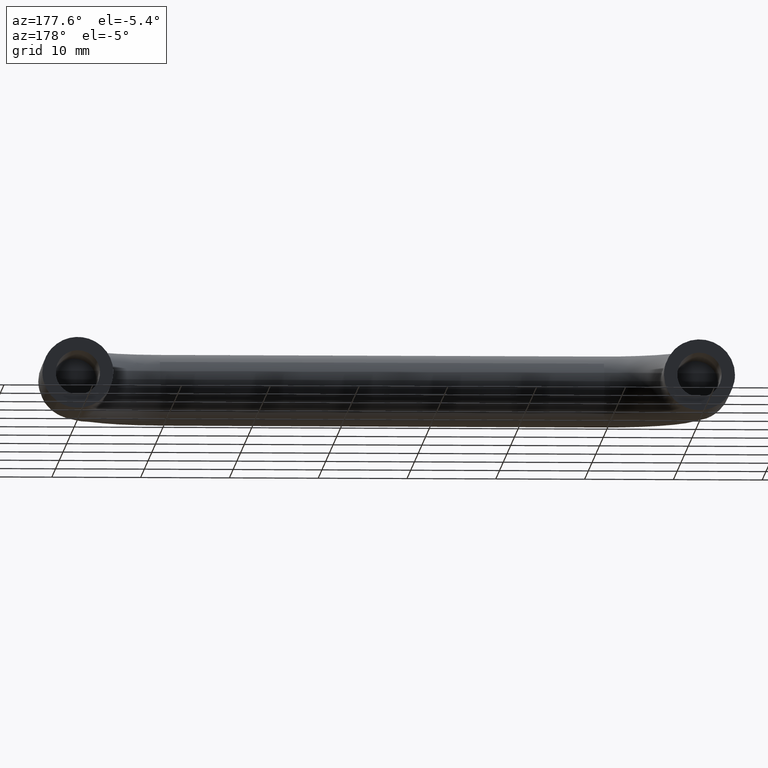
[diagram: clean part render]
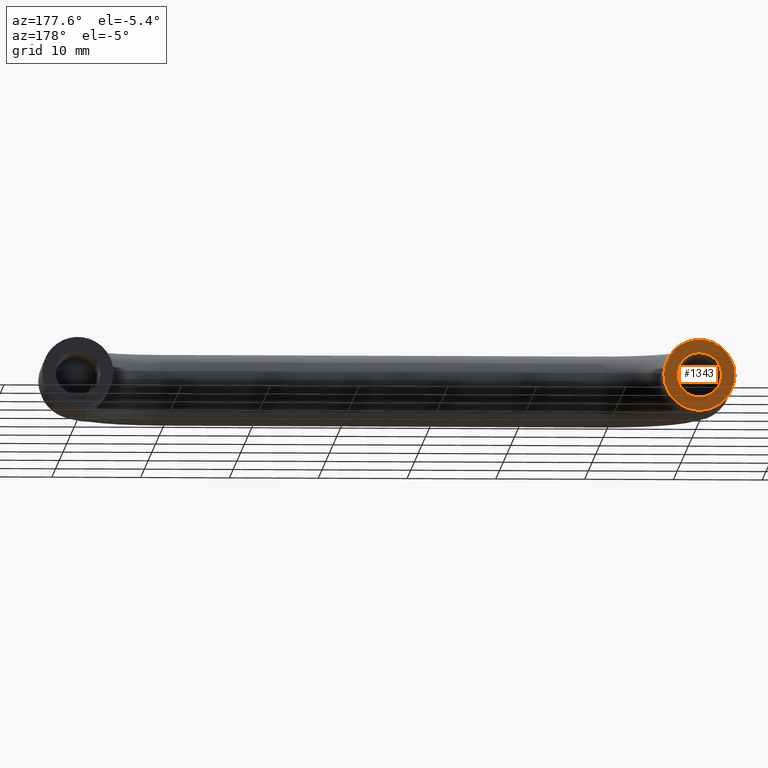
[diagram: same view with one face highlighted and labeled with its STEP entity id]
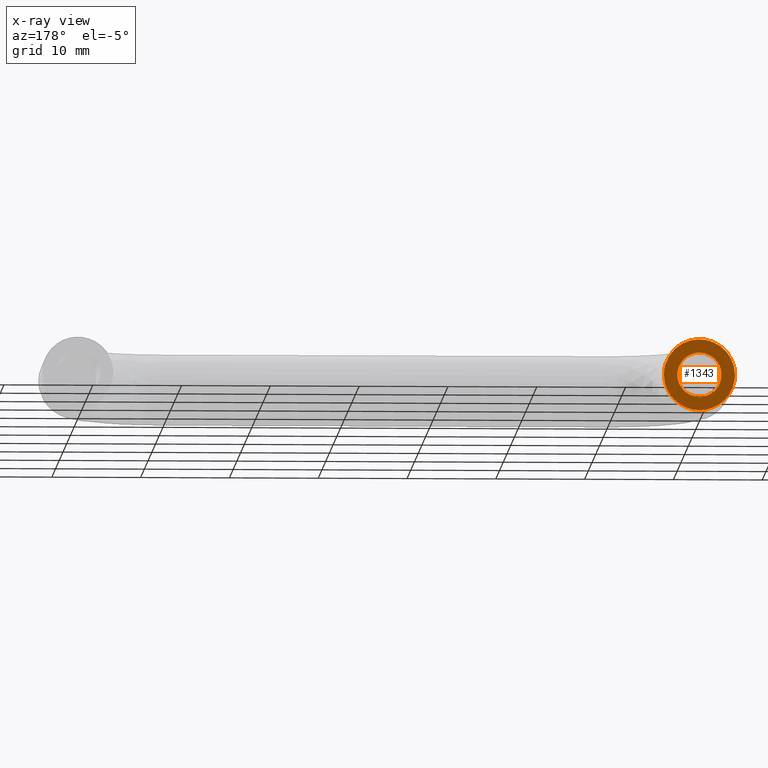
[diagram: x-ray of the same camera — body ghosted, the highlighted face saturated]
A machine part, auxiliary view. The second image highlights one B-rep face of the part: STEP entity #1343.
The next image is the same camera in x-ray: the body ghosted, the highlighted face saturated — about 0% of this face is hidden behind the body in this view.
In plain terms, the highlighted face is a freeform B-spline surface patch.
Its self-contained STEP definition (entity closure, byte-faithful):
#79=CARTESIAN_POINT('',(-2.492293334330208,-2.775558E-017,0.196147739352795));
#80=VERTEX_POINT('',#79);
#86=CARTESIAN_POINT('',(0.0,0.0,2.500000000000000));
#87=VERTEX_POINT('',#86);
#88=CARTESIAN_POINT('',(0.0,0.0,2.500000000000000));
#89=CARTESIAN_POINT('',(-2.310976229083793,0.0,2.500000000000000));
#90=CARTESIAN_POINT('',(-2.492293334330208,-2.775558E-017,0.196147739352795));
#98=(BOUNDED_CURVE()B_SPLINE_CURVE(2,(#88,#89,#90),.UNSPECIFIED.,.F.,.U.)B_SPLINE_CURVE_WITH_KNOTS((3,3),(0.0,0.236331300628202),.UNSPECIFIED.)CURVE()GEOMETRIC_REPRESENTATION_ITEM()RATIONAL_B_SPLINE_CURVE((1.0,0.723120658610544,0.969723356162290))REPRESENTATION_ITEM(''));
#99=EDGE_CURVE('',#87,#80,#98,.T.);
#101=CARTESIAN_POINT('',(2.492293334330208,-2.775558E-017,-0.196147739352795));
#102=VERTEX_POINT('',#101);
#103=CARTESIAN_POINT('',(2.492293334330209,-2.775558E-017,-0.196147739352795));
#104=CARTESIAN_POINT('',(2.500000000000000,0.0,-0.098225267552510));
#105=CARTESIAN_POINT('',(2.500000000000000,0.0,0.0));
#106=CARTESIAN_POINT('',(2.500000000000000,0.0,2.500000000000000));
#107=CARTESIAN_POINT('',(0.0,0.0,2.500000000000000));
#115=(BOUNDED_CURVE()B_SPLINE_CURVE(2,(#103,#104,#105,#106,#107),.UNSPECIFIED.,.F.,.U.)B_SPLINE_CURVE_WITH_KNOTS((3,2,3),(0.736331300628202,0.750000000000000,1.0),.UNSPECIFIED.)CURVE()GEOMETRIC_REPRESENTATION_ITEM()RATIONAL_B_SPLINE_CURVE((0.969723356162290,0.983986122576003,1.0,0.707106781186548,1.0))REPRESENTATION_ITEM(''));
#116=EDGE_CURVE('',#102,#87,#115,.T.);
#192=CARTESIAN_POINT('',(0.0,0.0,-2.500000000000000));
#193=VERTEX_POINT('',#192);
#194=CARTESIAN_POINT('',(0.0,0.0,-2.500000000000000));
#195=CARTESIAN_POINT('',(2.310976229083803,0.0,-2.500000000000000));
#196=CARTESIAN_POINT('',(2.492293334330208,-2.775558E-017,-0.196147739352795));
#204=(BOUNDED_CURVE()B_SPLINE_CURVE(2,(#194,#195,#196),.UNSPECIFIED.,.F.,.U.)B_SPLINE_CURVE_WITH_KNOTS((3,3),(0.500000000000000,0.736331300628203),.UNSPECIFIED.)CURVE()GEOMETRIC_REPRESENTATION_ITEM()RATIONAL_B_SPLINE_CURVE((1.0,0.723120658610544,0.969723356162291))REPRESENTATION_ITEM(''));
#205=EDGE_CURVE('',#193,#102,#204,.T.);
#207=CARTESIAN_POINT('',(-2.492293334330209,-2.775558E-017,0.196147739352795));
#208=CARTESIAN_POINT('',(-2.500000000000000,0.0,0.098225267552510));
#209=CARTESIAN_POINT('',(-2.500000000000000,0.0,0.0));
#210=CARTESIAN_POINT('',(-2.500000000000000,0.0,-2.500000000000000));
#211=CARTESIAN_POINT('',(0.0,0.0,-2.500000000000000));
#219=(BOUNDED_CURVE()B_SPLINE_CURVE(2,(#207,#208,#209,#210,#211),.UNSPECIFIED.,.F.,.U.)B_SPLINE_CURVE_WITH_KNOTS((3,2,3),(0.236331300628202,0.250000000000000,0.500000000000000),.UNSPECIFIED.)CURVE()GEOMETRIC_REPRESENTATION_ITEM()RATIONAL_B_SPLINE_CURVE((0.969723356162290,0.983986122576003,1.0,0.707106781186548,1.0))REPRESENTATION_ITEM(''));
#220=EDGE_CURVE('',#80,#193,#219,.T.);
#909=CARTESIAN_POINT('',(2.803636891802832,1.665335E-016,2.853001959151466));
#910=VERTEX_POINT('',#909);
#916=CARTESIAN_POINT('',(-4.0,0.0,0.0));
#917=VERTEX_POINT('',#916);
#918=CARTESIAN_POINT('',(-4.0,0.0,0.0));
#919=CARTESIAN_POINT('',(-4.000000000000000,0.0,4.000000000000000));
#920=CARTESIAN_POINT('',(0.0,0.0,4.0));
#921=CARTESIAN_POINT('',(1.636442935007546,0.0,4.000000000000001));
#922=CARTESIAN_POINT('',(2.803636891802831,1.665335E-016,2.853001959151467));
#930=(BOUNDED_CURVE()B_SPLINE_CURVE(2,(#918,#919,#920,#921,#922),.UNSPECIFIED.,.F.,.U.)B_SPLINE_CURVE_WITH_KNOTS((3,2,3),(0.500000000000000,0.750000000000000,0.873683224913730),.UNSPECIFIED.)CURVE()GEOMETRIC_REPRESENTATION_ITEM()RATIONAL_B_SPLINE_CURVE((1.0,0.707106781186548,1.0,0.855096088567158,0.853569641683335))REPRESENTATION_ITEM(''));
#931=EDGE_CURVE('',#917,#910,#930,.T.);
#933=CARTESIAN_POINT('',(2.853001939625961,1.665335E-016,-2.803636911672134));
#934=VERTEX_POINT('',#933);
#935=CARTESIAN_POINT('',(2.853001939625961,1.665335E-016,-2.803636911672134));
#936=CARTESIAN_POINT('',(1.677339446945102,0.0,-4.0));
#937=CARTESIAN_POINT('',(0.0,0.0,-4.0));
#938=CARTESIAN_POINT('',(-4.000000000000000,0.0,-4.000000000000000));
#939=CARTESIAN_POINT('',(-4.0,0.0,0.0));
#947=(BOUNDED_CURVE()B_SPLINE_CURVE(2,(#935,#936,#937,#938,#939),.UNSPECIFIED.,.F.,.U.)B_SPLINE_CURVE_WITH_KNOTS((3,2,3),(0.123683227015448,0.250000000000000,0.500000000000000),.UNSPECIFIED.)CURVE()GEOMETRIC_REPRESENTATION_ITEM()RATIONAL_B_SPLINE_CURVE((0.853569641631458,0.852010695081705,1.0,0.707106781186548,1.0))REPRESENTATION_ITEM(''));
#948=EDGE_CURVE('',#934,#917,#947,.T.);
#1050=CARTESIAN_POINT('',(4.0,0.0,0.0));
#1051=VERTEX_POINT('',#1050);
#1052=CARTESIAN_POINT('',(4.0,0.0,0.0));
#1053=CARTESIAN_POINT('',(4.0,0.0,-1.636442967527467));
#1054=CARTESIAN_POINT('',(2.853001939625961,1.665335E-016,-2.803636911672134));
#1062=(BOUNDED_CURVE()B_SPLINE_CURVE(2,(#1052,#1053,#1054),.UNSPECIFIED.,.F.,.U.)B_SPLINE_CURVE_WITH_KNOTS((3,3),(0.0,0.123683227015448),.UNSPECIFIED.)CURVE()GEOMETRIC_REPRESENTATION_ITEM()RATIONAL_B_SPLINE_CURVE((1.0,0.855096086104842,0.853569641631458))REPRESENTATION_ITEM(''));
#1063=EDGE_CURVE('',#1051,#934,#1062,.T.);
#1065=CARTESIAN_POINT('',(2.803636891802832,1.665335E-016,2.853001959151466));
#1066=CARTESIAN_POINT('',(4.000000000000000,0.0,1.677339479700990));
#1067=CARTESIAN_POINT('',(4.0,0.0,0.0));
#1075=(BOUNDED_CURVE()B_SPLINE_CURVE(2,(#1065,#1066,#1067),.UNSPECIFIED.,.F.,.U.)B_SPLINE_CURVE_WITH_KNOTS((3,3),(0.873683224913729,1.0),.UNSPECIFIED.)CURVE()GEOMETRIC_REPRESENTATION_ITEM()RATIONAL_B_SPLINE_CURVE((0.853569641683335,0.852010692619389,1.0))REPRESENTATION_ITEM(''));
#1076=EDGE_CURVE('',#910,#1051,#1075,.T.);
#1326=CARTESIAN_POINT('',(-4.399599984494448,0.0,-4.399525794188877));
#1327=CARTESIAN_POINT('',(4.399600199071169,0.0,-4.399525794188877));
#1328=CARTESIAN_POINT('',(-4.399599984494448,0.0,4.399525937240026));
#1329=CARTESIAN_POINT('',(4.399600199071169,0.0,4.399525937240026));
#1330=B_SPLINE_SURFACE_WITH_KNOTS('',1,1,((#1326,#1328),(#1327,#1329)),.UNSPECIFIED.,.F.,.F.,.U.,(2,2),(2,2),(0.0,8.799200183565617),(0.0,8.799051731428904),.UNSPECIFIED.);
#1331=ORIENTED_EDGE('',*,*,#1063,.T.);
#1332=ORIENTED_EDGE('',*,*,#948,.T.);
#1333=ORIENTED_EDGE('',*,*,#931,.T.);
#1334=ORIENTED_EDGE('',*,*,#1076,.T.);
#1335=EDGE_LOOP('',(#1331,#1332,#1333,#1334));
#1336=FACE_OUTER_BOUND('',#1335,.T.);
#1337=ORIENTED_EDGE('',*,*,#205,.T.);
#1338=ORIENTED_EDGE('',*,*,#116,.T.);
#1339=ORIENTED_EDGE('',*,*,#99,.T.);
#1340=ORIENTED_EDGE('',*,*,#220,.T.);
#1341=EDGE_LOOP('',(#1337,#1338,#1339,#1340));
#1342=FACE_BOUND('',#1341,.T.);
#1343=ADVANCED_FACE('',(#1336,#1342),#1330,.F.);